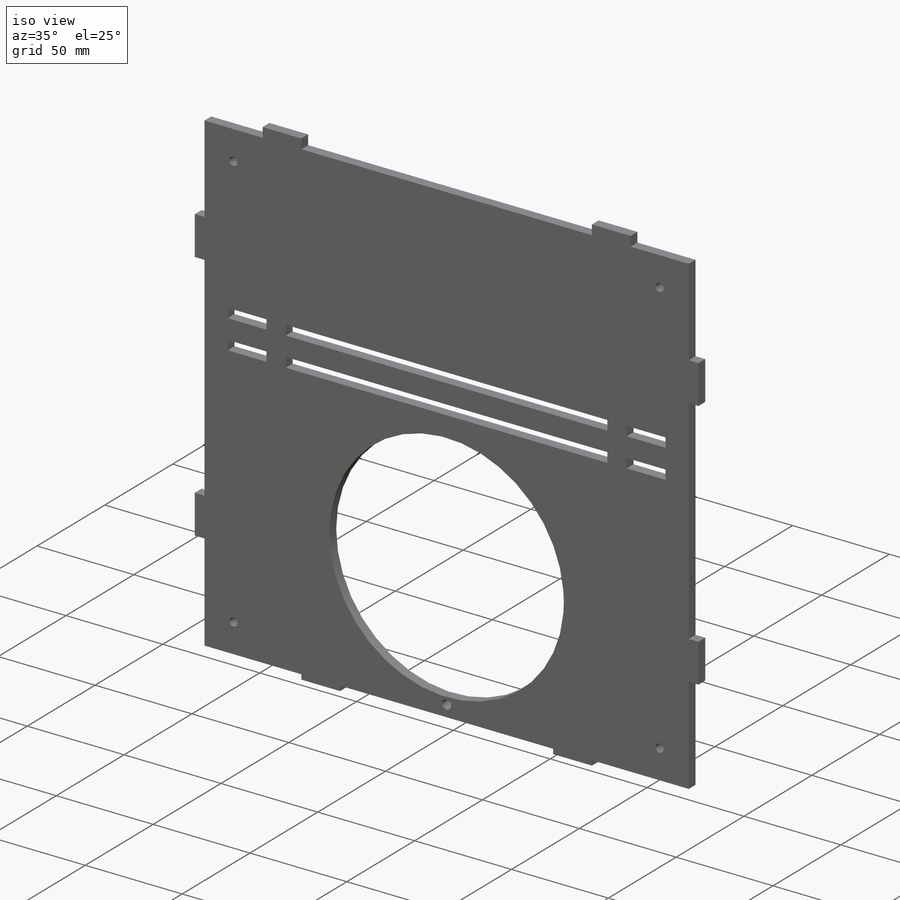
[diagram: iso view]
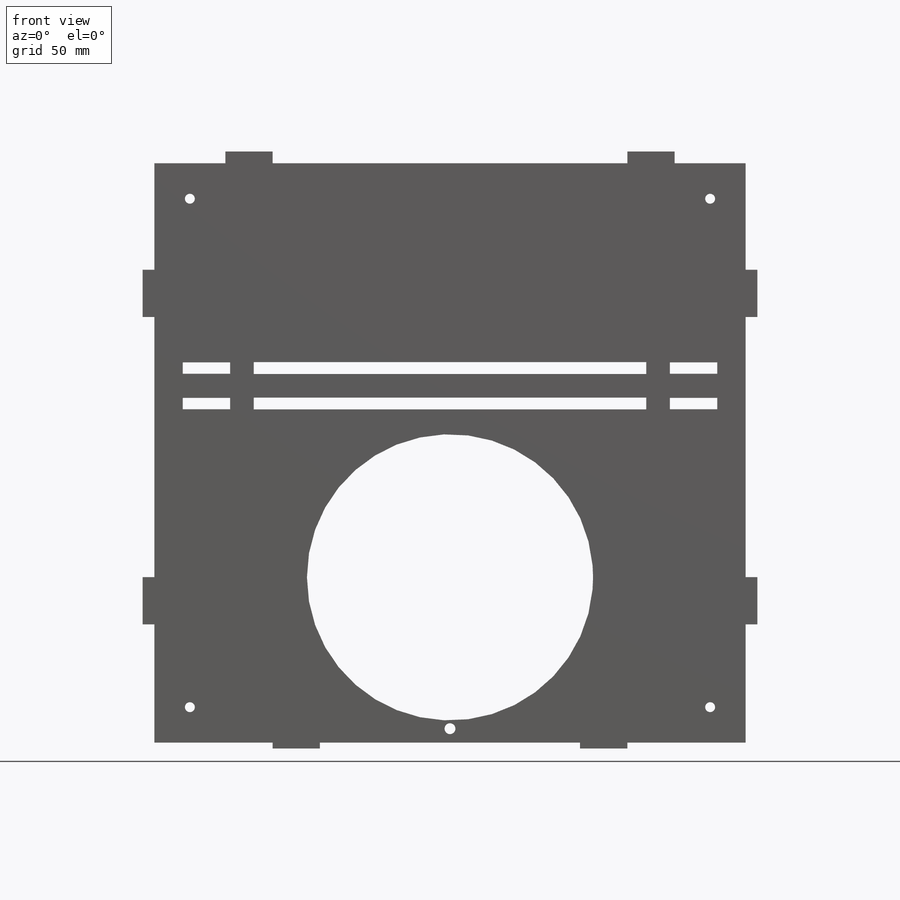
[diagram: front view]
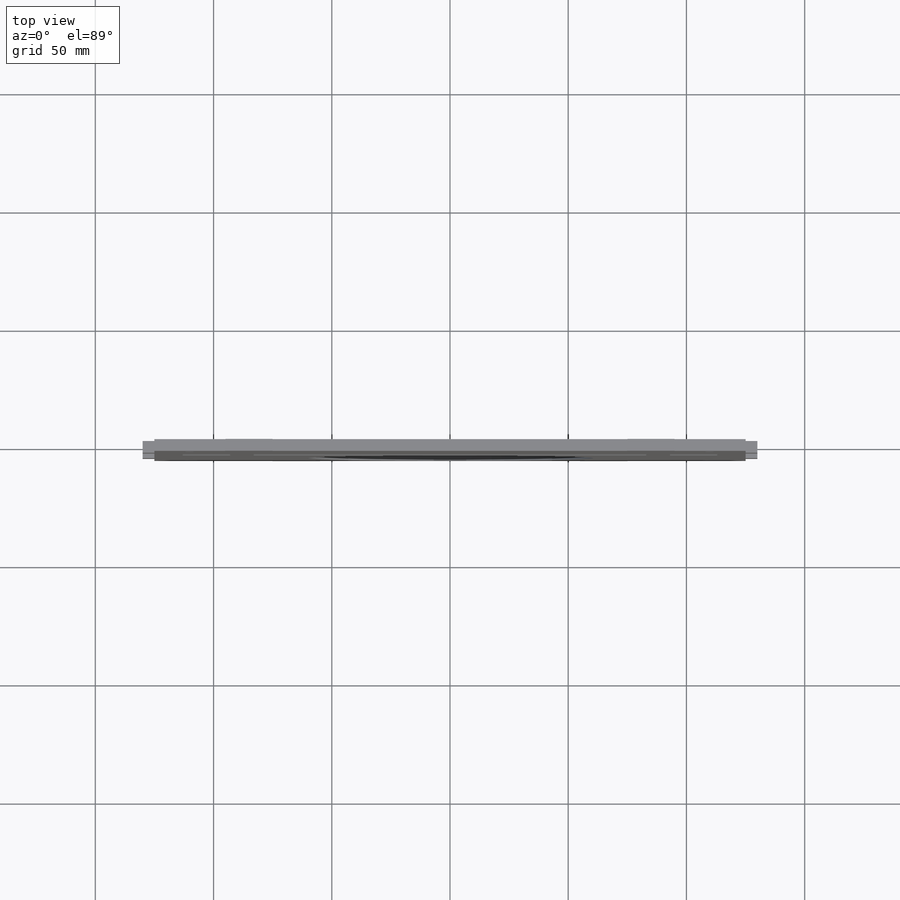
[diagram: top view]
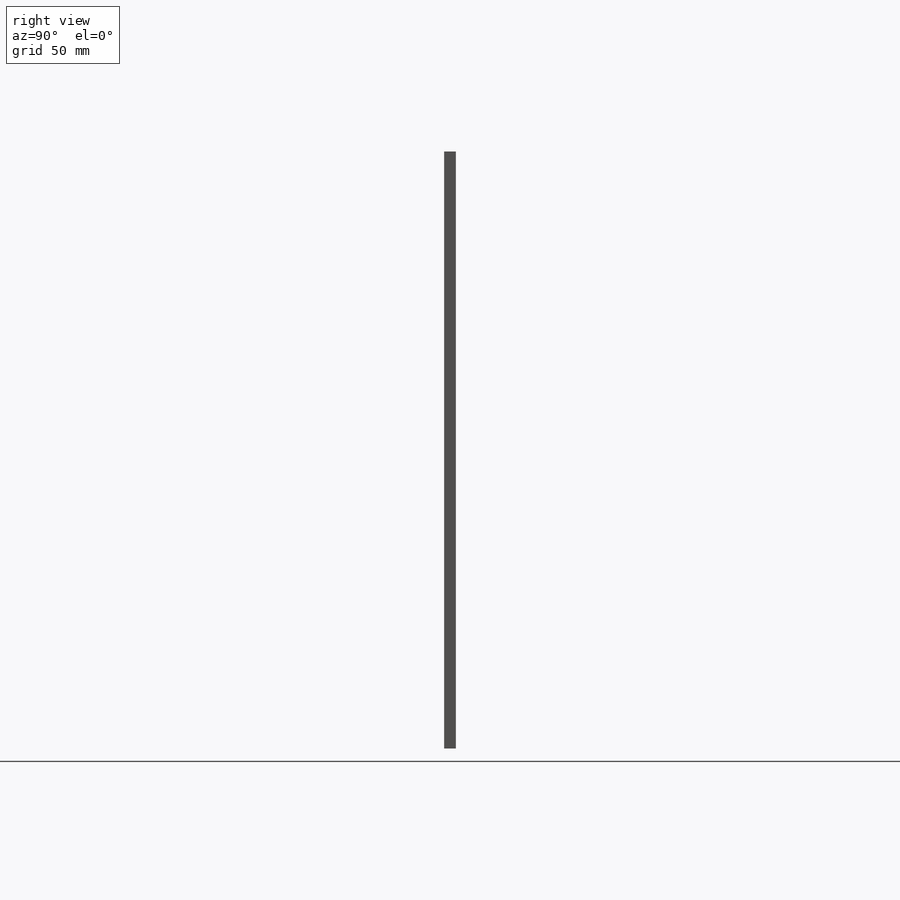
[diagram: right view]
SOLIDWORKS PART (.sldprt)
format: sldprt  version: not decoded by parser v0  size: 317,952 bytes
history: native  units: mm
features: sketch x6, cut_extrude x5, material x1, extrude x1, mirror x1 (+11 scaffold rows collapsed)
feature tree (25):
  scaffold x11  (default folders/planes/origin — collapsed)
  material  "Material <not specified>"
  sketch  "Sketch1"  dims[c1.D3=7.0mm c1.D1=~254.645642mm c1.D2=~250.318323mm c2.D1=0.0mm c2.D3=2.5mm c2.D4=2.5mm c2.D2=3.0mm]
  extrude  "Boss-Extrude1"  Depth=5mm
  sketch  "Sketch3"  dims[c1.D1=~3.886573mm c1.D2=20.0mm c2.D1=4.8mm c2.D2=0.1mm c2.D3=~4.410773mm c2.D4=20.0mm c3.D3=0.1mm c3.D4=4.8mm]
  cut_extrude  "Cut-Extrude1"  Depth=5mm
  mirror  "Mirror1"
  sketch  "Sketch4"  dims[c1.D1=~6.698696mm c1.D2=~159.802268mm c2.D1=5.0mm c2.D2=10.0mm c2.D3=10.0mm c2.D4=5.0mm c2.D5=166.0mm c3.D4=5.0mm]
  cut_extrude  "Cut-Extrude2"  Depth=5mm
  sketch  "Sketch5"  dims[c1.D1=4.2mm c1.D2=4.2mm c1.D3=4.2mm c1.D4=4.2mm c1.D5=4.2mm c2.D2=15.0mm c2.D3=15.0mm c2.D5=15.0mm c2.D6=15.0mm]
  cut_extrude  "Cut-Extrude3"  Depth=5mm
  sketch  "Sketch6"  dims[D1=20.0mm D2=5.0mm D3=20.0mm D4=30.0mm D5=30.0mm D6=150.0mm]
  cut_extrude  "Cut-Extrude4"  Depth=5mm
  sketch  "Sketch7"  dims[c1.D1=4.2mm c1.D2=4.2mm c1.D3=4.2mm c1.D5=4.2mm c1.D6=4.2mm c2.D3=15.0mm c2.D4=15.0mm c2.D5=15.0mm c2.D6=15.0mm]
  cut_extrude  "Cut-Extrude5"  Depth=5mm
decode coverage: 12 of 13 modeling features carry decoded parameters
note: ~ marks probable driven/reference dimensions
note: suppression state not decoded; provenance and decode notes live in map.json
